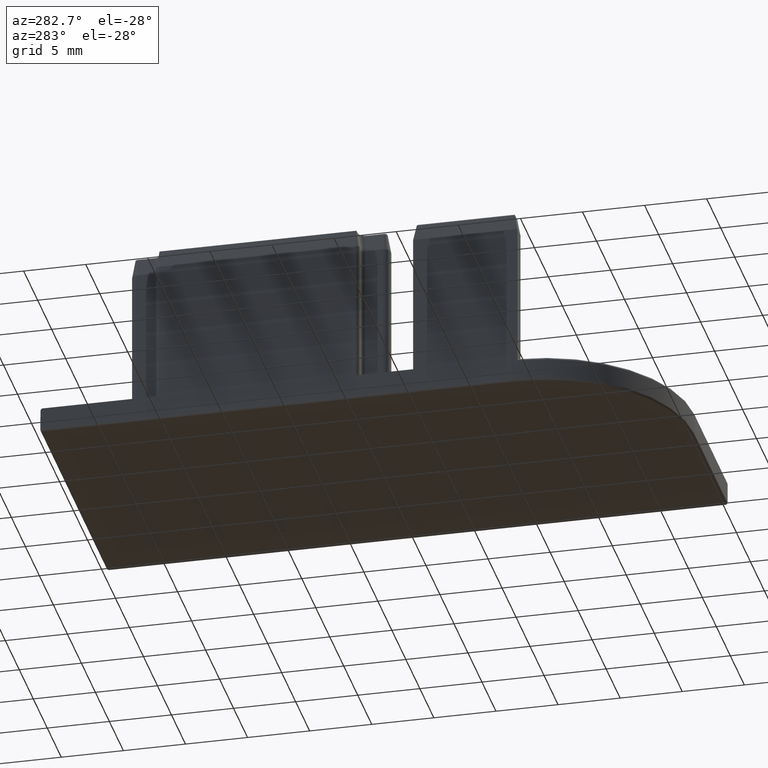
[diagram: clean part render]
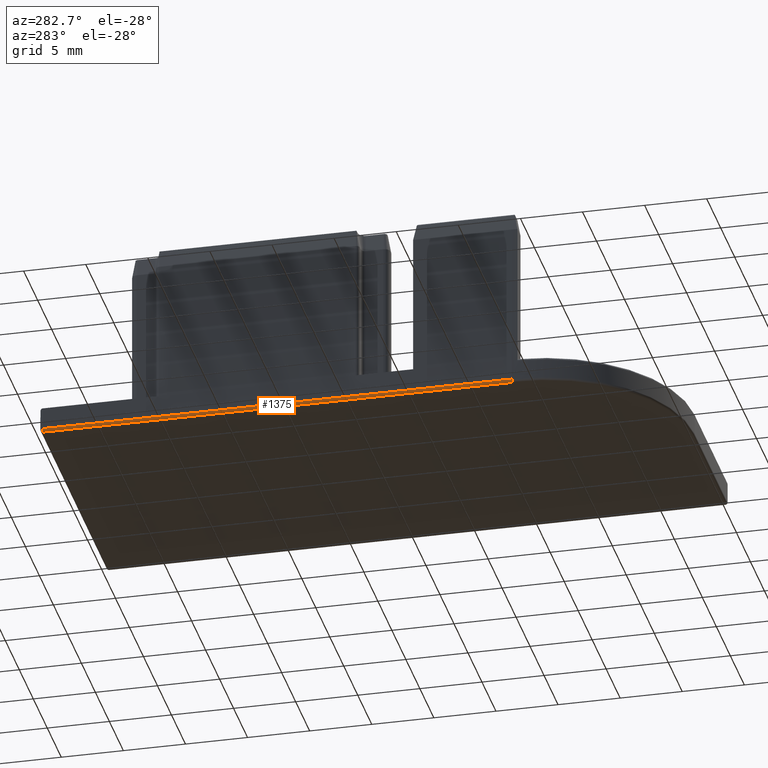
[diagram: same view with one face highlighted and labeled with its STEP entity id]
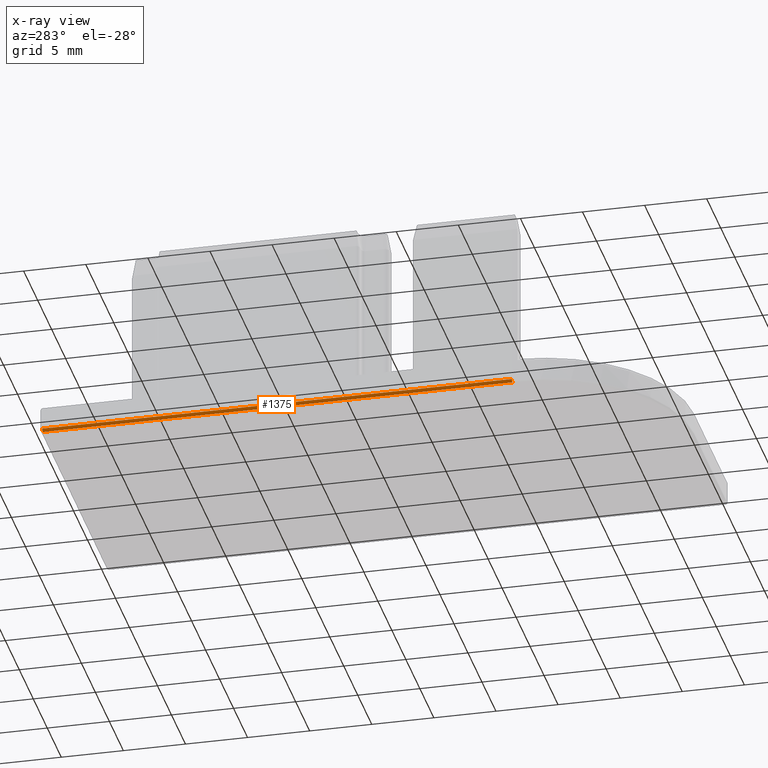
[diagram: x-ray of the same camera — body ghosted, the highlighted face saturated]
A machine part, auxiliary view. The second image highlights one B-rep face of the part: STEP entity #1375.
The next image is the same camera in x-ray: the body ghosted, the highlighted face saturated — about 0% of this face is hidden behind the body in this view.
In plain terms, the highlighted cylindrical surface (edge-blend (fillet) strip) has radius 0.2 mm, axis along (0, -1, 0).
Its self-contained STEP definition (entity closure, byte-faithful):
#110=FACE_OUTER_BOUND('',#199,.T.);
#199=EDGE_LOOP('',(#1030,#1031,#1032,#1033));
#296=LINE('',#2286,#418);
#297=LINE('',#2287,#419);
#418=VECTOR('',#1824,10.);
#419=VECTOR('',#1825,10.);
#515=CIRCLE('',#1482,0.2);
#543=CIRCLE('',#1533,0.2);
#596=VERTEX_POINT('',#2161);
#598=VERTEX_POINT('',#2164);
#631=VERTEX_POINT('',#2283);
#632=VERTEX_POINT('',#2284);
#727=EDGE_CURVE('',#598,#596,#515,.T.);
#782=EDGE_CURVE('',#631,#632,#543,.T.);
#783=EDGE_CURVE('',#632,#596,#296,.T.);
#784=EDGE_CURVE('',#598,#631,#297,.T.);
#1030=ORIENTED_EDGE('',*,*,#782,.T.);
#1031=ORIENTED_EDGE('',*,*,#783,.T.);
#1032=ORIENTED_EDGE('',*,*,#727,.F.);
#1033=ORIENTED_EDGE('',*,*,#784,.T.);
#1326=CYLINDRICAL_SURFACE('',#1532,0.2);
#1375=ADVANCED_FACE('',(#110),#1326,.T.);
#1482=AXIS2_PLACEMENT_3D('',#2166,#1696,#1697);
#1532=AXIS2_PLACEMENT_3D('',#2282,#1820,#1821);
#1533=AXIS2_PLACEMENT_3D('',#2285,#1822,#1823);
#1696=DIRECTION('center_axis',(0.,1.,0.));
#1697=DIRECTION('ref_axis',(-0.707106781186548,0.,-0.707106781186547));
#1820=DIRECTION('center_axis',(0.,-1.,0.));
#1821=DIRECTION('ref_axis',(-0.707106781186548,0.,-0.707106781186547));
#1822=DIRECTION('center_axis',(0.,1.,0.));
#1823=DIRECTION('ref_axis',(0.,0.,-1.));
#1824=DIRECTION('',(0.,1.,0.));
#1825=DIRECTION('',(0.,-1.,0.));
#2161=CARTESIAN_POINT('',(-12.,24.8,0.2));
#2164=CARTESIAN_POINT('',(-11.8,24.8,0.));
#2166=CARTESIAN_POINT('Origin',(-11.8,24.8,0.2));
#2282=CARTESIAN_POINT('Origin',(-11.8,-6.00285323946665,0.2));
#2283=CARTESIAN_POINT('',(-11.8,-13.,0.));
#2284=CARTESIAN_POINT('',(-12.,-13.,0.2));
#2285=CARTESIAN_POINT('Origin',(-11.8,-13.,0.2));
#2286=CARTESIAN_POINT('',(-12.,-6.00285323946665,0.2));
#2287=CARTESIAN_POINT('',(-11.8,-6.00285323946665,0.));